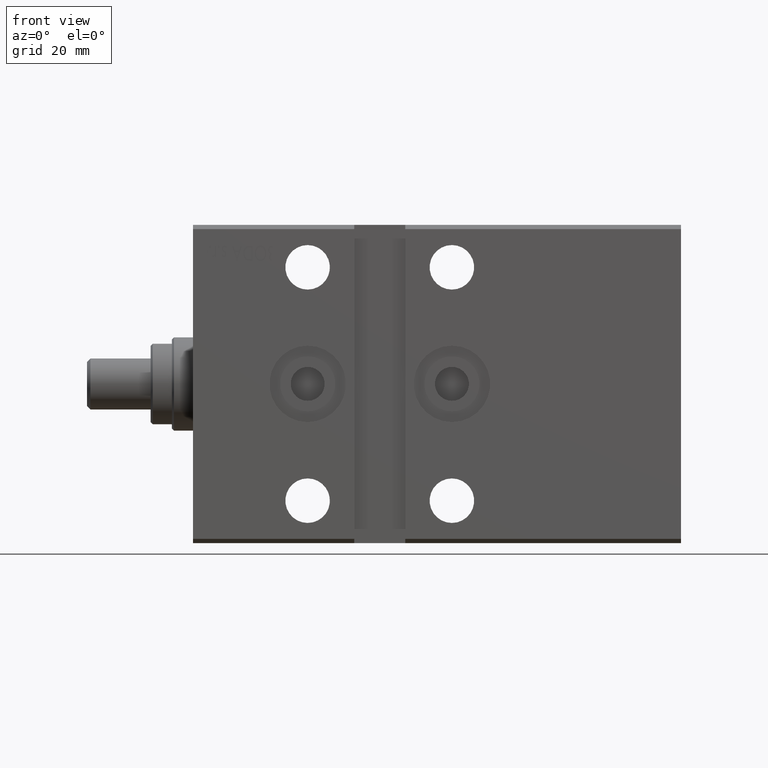
[diagram: clean part render]
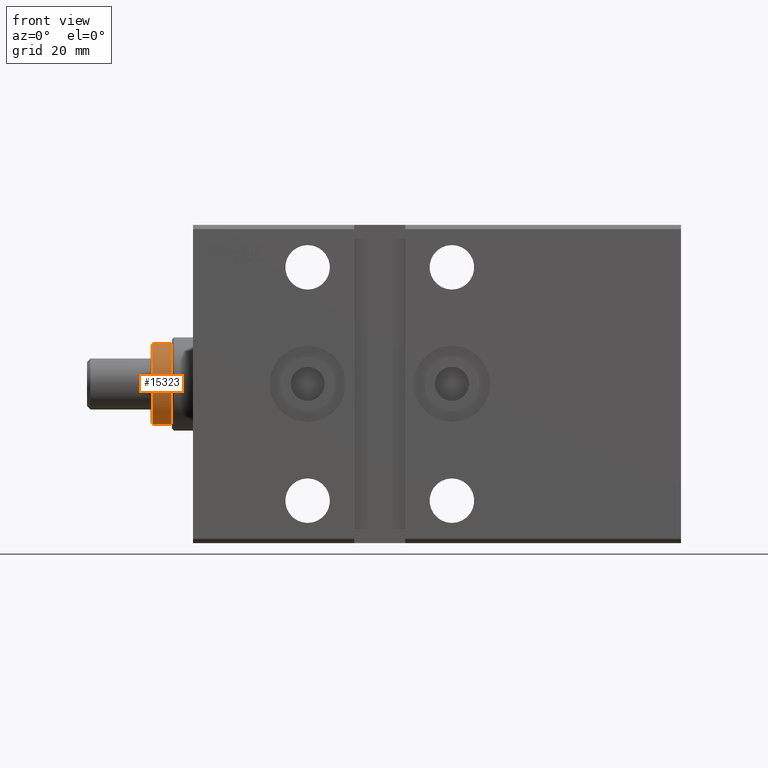
[diagram: same view with one face highlighted and labeled with its STEP entity id]
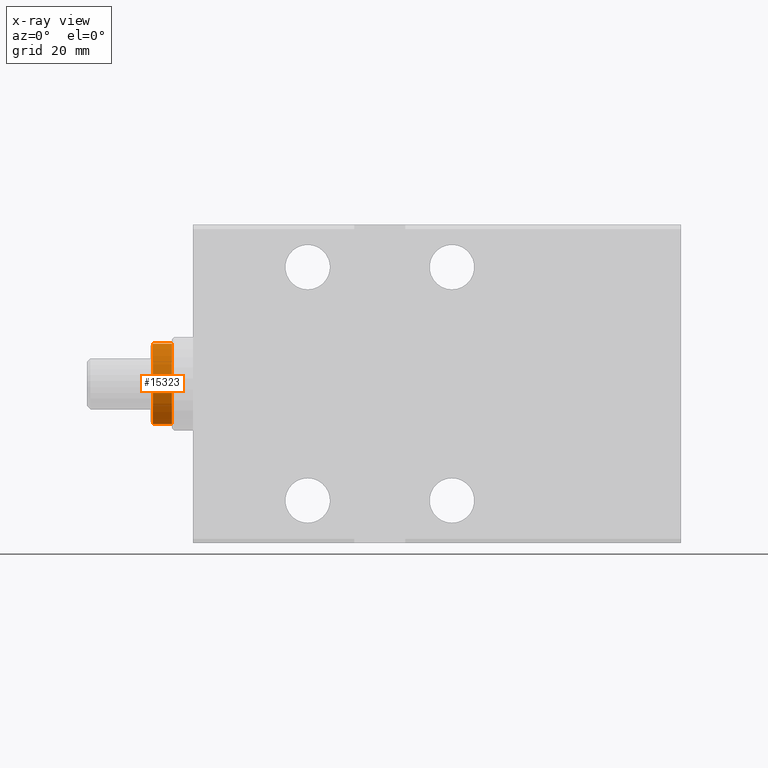
[diagram: x-ray of the same camera — body ghosted, the highlighted face saturated]
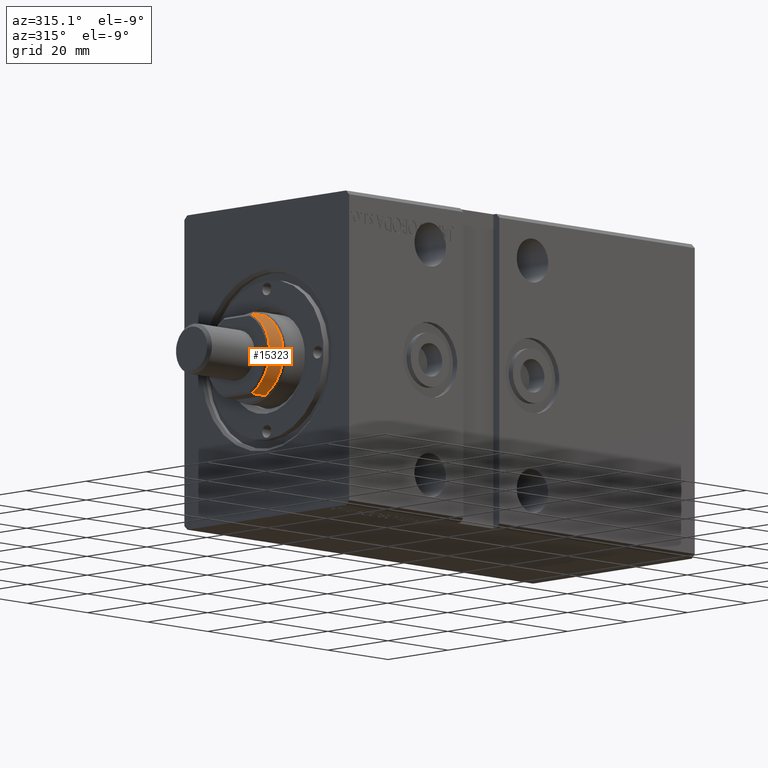
[diagram: same view with one face highlighted and labeled with its STEP entity id]
A machine part, front view. The second image highlights one B-rep face of the part: STEP entity #15323.
The next image is the same camera in x-ray: the body ghosted, the highlighted face saturated — about 0% of this face is hidden behind the body in this view.
A second angle (auxiliary view) of the same face is appended — the face is thin or edge-on in the first view.
In plain terms, the highlighted cylindrical surface (partial cylindrical patch) has radius 10.5 mm, axis along (1, -0, -0).
Its self-contained STEP definition (entity closure, byte-faithful):
#1136 = CYLINDRICAL_SURFACE ( 'NONE', #39068, 10.49999999999999467 ) ;
#2434 = EDGE_CURVE ( 'NONE', #27342, #39362, #12277, .T. ) ;
#4310 = FACE_OUTER_BOUND ( 'NONE', #40773, .T. ) ;
#4743 = DIRECTION ( 'NONE',  ( -0.000000000000000000, -0.000000000000000000, -1.000000000000000000 ) ) ;
#5058 = EDGE_CURVE ( 'NONE', #34294, #27342, #22824, .T. ) ;
#5524 = EDGE_CURVE ( 'NONE', #25317, #39362, #14059, .T. ) ;
#6461 = DIRECTION ( 'NONE',  ( 0.000000000000000000, 0.000000000000000000, 1.000000000000000000 ) ) ;
#7116 = CARTESIAN_POINT ( 'NONE',  ( -9.500000000000000000, -4.472135954999568952, 111.2000000000000028 ) ) ;
#7314 = CARTESIAN_POINT ( 'NONE',  ( 9.500000000000000000, -4.472135954999568952, 110.6999999999999886 ) ) ;
#7655 = DIRECTION ( 'NONE',  ( 1.000000000000000000, 0.000000000000000000, 0.000000000000000000 ) ) ;
#7679 = DIRECTION ( 'NONE',  ( -0.000000000000000000, -0.000000000000000000, -1.000000000000000000 ) ) ;
#8079 = AXIS2_PLACEMENT_3D ( 'NONE', #8088, #37183, #7655 ) ;
#8088 = CARTESIAN_POINT ( 'NONE',  ( 0.000000000000000000, 0.000000000000000000, 110.6999999999999886 ) ) ;
#10345 = ORIENTED_EDGE ( 'NONE', *, *, #12420, .T. ) ;
#10871 = CARTESIAN_POINT ( 'NONE',  ( 9.500000000000000000, -4.472135954999568952, 111.2000000000000028 ) ) ;
#12277 = CIRCLE ( 'NONE', #29924, 10.49999999999999467 ) ;
#12420 = EDGE_CURVE ( 'NONE', #25317, #34294, #26378, .T. ) ;
#14052 = CARTESIAN_POINT ( 'NONE',  ( 0.000000000000000000, 0.000000000000000000, 111.2000000000000028 ) ) ;
#14059 = LINE ( 'NONE', #10871, #23177 ) ;
#14223 = ORIENTED_EDGE ( 'NONE', *, *, #2434, .T. ) ;
#15323 = ADVANCED_FACE ( 'NONE', ( #4310 ), #1136, .T. ) ;
#17761 = VECTOR ( 'NONE', #38195, 1000.000000000000000 ) ;
#20630 = DIRECTION ( 'NONE',  ( -1.000000000000000000, 0.000000000000000000, 0.000000000000000000 ) ) ;
#20921 = ORIENTED_EDGE ( 'NONE', *, *, #5058, .T. ) ;
#22824 = LINE ( 'NONE', #7116, #17761 ) ;
#23177 = VECTOR ( 'NONE', #4743, 1000.000000000000000 ) ;
#25317 = VERTEX_POINT ( 'NONE', #7314 ) ;
#26378 = CIRCLE ( 'NONE', #8079, 10.49999999999999467 ) ;
#27342 = VERTEX_POINT ( 'NONE', #31089 ) ;
#29381 = DIRECTION ( 'NONE',  ( 1.000000000000000000, 0.000000000000000000, 0.000000000000000000 ) ) ;
#29924 = AXIS2_PLACEMENT_3D ( 'NONE', #35550, #6461, #29381 ) ;
#31089 = CARTESIAN_POINT ( 'NONE',  ( -9.500000000000000000, -4.472135954999568064, 106.2000000000000028 ) ) ;
#33487 = CARTESIAN_POINT ( 'NONE',  ( 9.500000000000000000, -4.472135954999568064, 106.2000000000000028 ) ) ;
#34294 = VERTEX_POINT ( 'NONE', #39249 ) ;
#35550 = CARTESIAN_POINT ( 'NONE',  ( 0.000000000000000000, 0.000000000000000000, 106.2000000000000028 ) ) ;
#37183 = DIRECTION ( 'NONE',  ( 0.000000000000000000, 0.000000000000000000, -1.000000000000000000 ) ) ;
#37275 = ORIENTED_EDGE ( 'NONE', *, *, #5524, .F. ) ;
#38195 = DIRECTION ( 'NONE',  ( -0.000000000000000000, -0.000000000000000000, -1.000000000000000000 ) ) ;
#39068 = AXIS2_PLACEMENT_3D ( 'NONE', #14052, #7679, #20630 ) ;
#39249 = CARTESIAN_POINT ( 'NONE',  ( -9.500000000000000000, -4.472135954999568952, 110.6999999999999886 ) ) ;
#39362 = VERTEX_POINT ( 'NONE', #33487 ) ;
#40773 = EDGE_LOOP ( 'NONE', ( #37275, #10345, #20921, #14223 ) ) ;